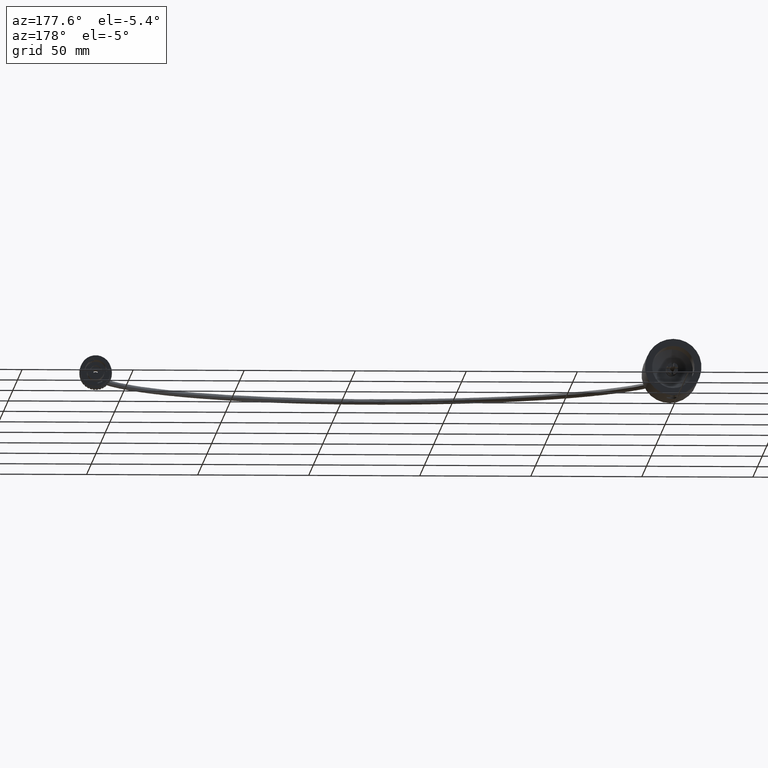
[diagram: clean part render]
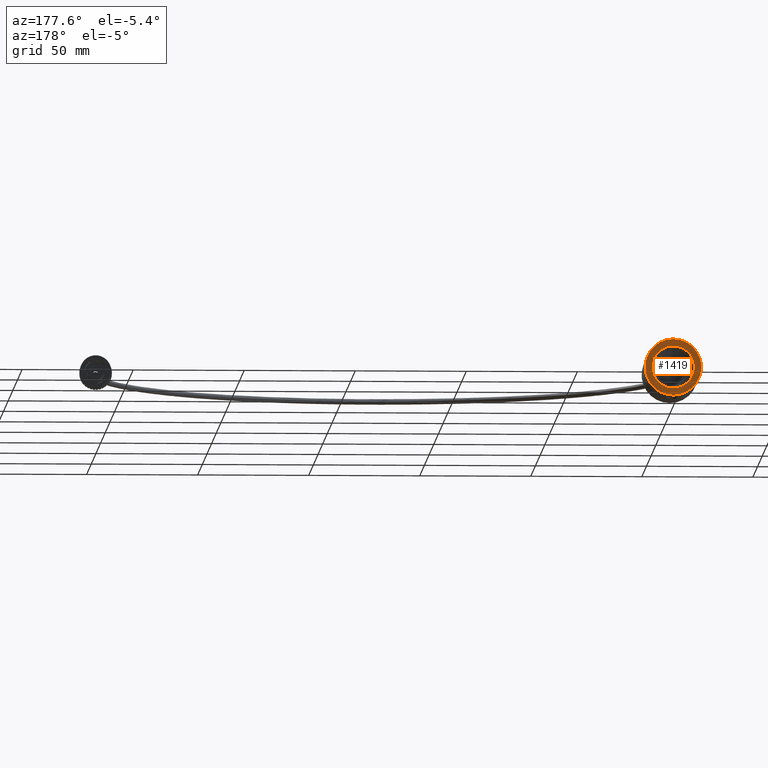
[diagram: same view with one face highlighted and labeled with its STEP entity id]
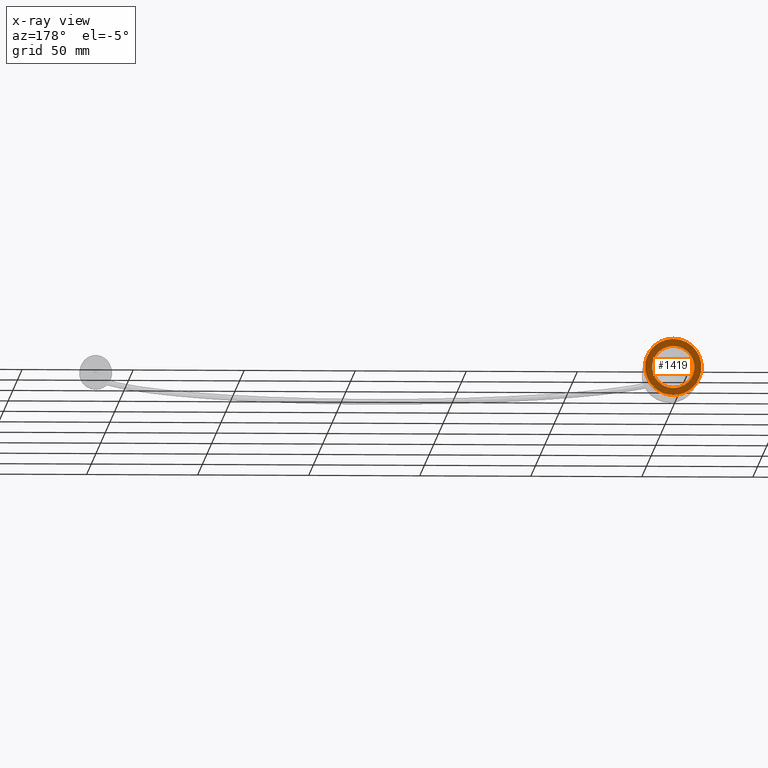
[diagram: x-ray of the same camera — body ghosted, the highlighted face saturated]
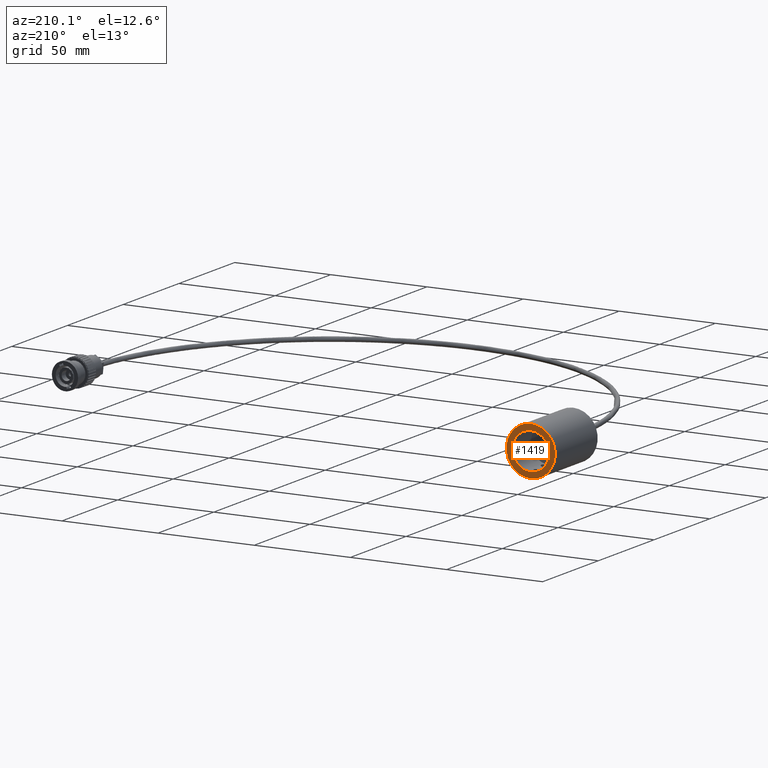
[diagram: same view with one face highlighted and labeled with its STEP entity id]
A machine part, auxiliary view. The second image highlights one B-rep face of the part: STEP entity #1419.
The next image is the same camera in x-ray: the body ghosted, the highlighted face saturated — about 0% of this face is hidden behind the body in this view.
A second angle (auxiliary view) of the same face is appended — the face is thin or edge-on in the first view.
In plain terms, the highlighted planar face has unit normal (0, 1, 0).
Its self-contained STEP definition (entity closure, byte-faithful):
#83 = ORIENTED_EDGE ( 'NONE', *, *, #3989, .T. ) ;
#179 = ORIENTED_EDGE ( 'NONE', *, *, #3982, .T. ) ;
#195 = ORIENTED_EDGE ( 'NONE', *, *, #4510, .F. ) ;
#197 = ORIENTED_EDGE ( 'NONE', *, *, #4037, .F. ) ;
#1419 = ADVANCED_FACE ( 'NONE', ( #3318, #3801 ), #11584, .T. ) ;
#1821 = CARTESIAN_POINT ( 'NONE',  ( 6.123233995736766000E-017, 1.500000000000000200, 0.5000000000000000000 ) ) ;
#1826 = CARTESIAN_POINT ( 'NONE',  ( 0.0000000000000000000, 1.500000000000000200, -0.5000000000000000000 ) ) ;
#3173 = VERTEX_POINT ( 'NONE', #5531 ) ;
#3318 = FACE_OUTER_BOUND ( 'NONE', #9618, .T. ) ;
#3801 = FACE_BOUND ( 'NONE', #9730, .T. ) ;
#3982 = EDGE_CURVE ( 'NONE', #6217, #3173, #6834, .T. ) ;
#3989 = EDGE_CURVE ( 'NONE', #3173, #6217, #6843, .T. ) ;
#4037 = EDGE_CURVE ( 'NONE', #9896, #9891, #6902, .T. ) ;
#4510 = EDGE_CURVE ( 'NONE', #9891, #9896, #6954, .T. ) ;
#5531 = CARTESIAN_POINT ( 'NONE',  ( 4.592425496802575500E-017, 1.500000000000000200, 0.3750000000000000600 ) ) ;
#6217 = VERTEX_POINT ( 'NONE', #9256 ) ;
#6546 = AXIS2_PLACEMENT_3D ( 'NONE', #7514, #8957, #8956 ) ;
#6549 = AXIS2_PLACEMENT_3D ( 'NONE', #8925, #8924, #8923 ) ;
#6562 = AXIS2_PLACEMENT_3D ( 'NONE', #10657, #10658, #10659 ) ;
#6576 = AXIS2_PLACEMENT_3D ( 'NONE', #10099, #10100, #10101 ) ;
#6834 = CIRCLE ( 'NONE', #6546, 0.3750000000000000600 ) ;
#6843 = CIRCLE ( 'NONE', #6549, 0.3750000000000000600 ) ;
#6902 = CIRCLE ( 'NONE', #6562, 0.5000000000000000000 ) ;
#6954 = CIRCLE ( 'NONE', #6576, 0.5000000000000000000 ) ;
#7514 = CARTESIAN_POINT ( 'NONE',  ( 0.0000000000000000000, 1.500000000000000200, 0.0000000000000000000 ) ) ;
#8797 = AXIS2_PLACEMENT_3D ( 'NONE', #11588, #11579, #11578 ) ;
#8923 = DIRECTION ( 'NONE',  ( 0.0000000000000000000, 0.0000000000000000000, -1.000000000000000000 ) ) ;
#8924 = DIRECTION ( 'NONE',  ( -0.0000000000000000000, -1.000000000000000000, -0.0000000000000000000 ) ) ;
#8925 = CARTESIAN_POINT ( 'NONE',  ( 0.0000000000000000000, 1.500000000000000200, 0.0000000000000000000 ) ) ;
#8956 = DIRECTION ( 'NONE',  ( 0.0000000000000000000, 0.0000000000000000000, -1.000000000000000000 ) ) ;
#8957 = DIRECTION ( 'NONE',  ( -0.0000000000000000000, -1.000000000000000000, -0.0000000000000000000 ) ) ;
#9256 = CARTESIAN_POINT ( 'NONE',  ( 0.0000000000000000000, 1.500000000000000200, -0.3750000000000000600 ) ) ;
#9618 = EDGE_LOOP ( 'NONE', ( #197, #195 ) ) ;
#9730 = EDGE_LOOP ( 'NONE', ( #179, #83 ) ) ;
#9891 = VERTEX_POINT ( 'NONE', #1821 ) ;
#9896 = VERTEX_POINT ( 'NONE', #1826 ) ;
#10099 = CARTESIAN_POINT ( 'NONE',  ( 0.0000000000000000000, 1.500000000000000200, 0.0000000000000000000 ) ) ;
#10100 = DIRECTION ( 'NONE',  ( -0.0000000000000000000, -1.000000000000000000, -0.0000000000000000000 ) ) ;
#10101 = DIRECTION ( 'NONE',  ( 0.0000000000000000000, 0.0000000000000000000, -1.000000000000000000 ) ) ;
#10657 = CARTESIAN_POINT ( 'NONE',  ( 0.0000000000000000000, 1.500000000000000200, 0.0000000000000000000 ) ) ;
#10658 = DIRECTION ( 'NONE',  ( -0.0000000000000000000, -1.000000000000000000, -0.0000000000000000000 ) ) ;
#10659 = DIRECTION ( 'NONE',  ( 0.0000000000000000000, 0.0000000000000000000, -1.000000000000000000 ) ) ;
#11578 = DIRECTION ( 'NONE',  ( 0.0000000000000000000, -0.0000000000000000000, 1.000000000000000000 ) ) ;
#11579 = DIRECTION ( 'NONE',  ( 0.0000000000000000000, 1.000000000000000000, 0.0000000000000000000 ) ) ;
#11584 = PLANE ( 'NONE',  #8797 ) ;
#11588 = CARTESIAN_POINT ( 'NONE',  ( 0.3750000000000000600, 1.500000000000000200, 0.0000000000000000000 ) ) ;